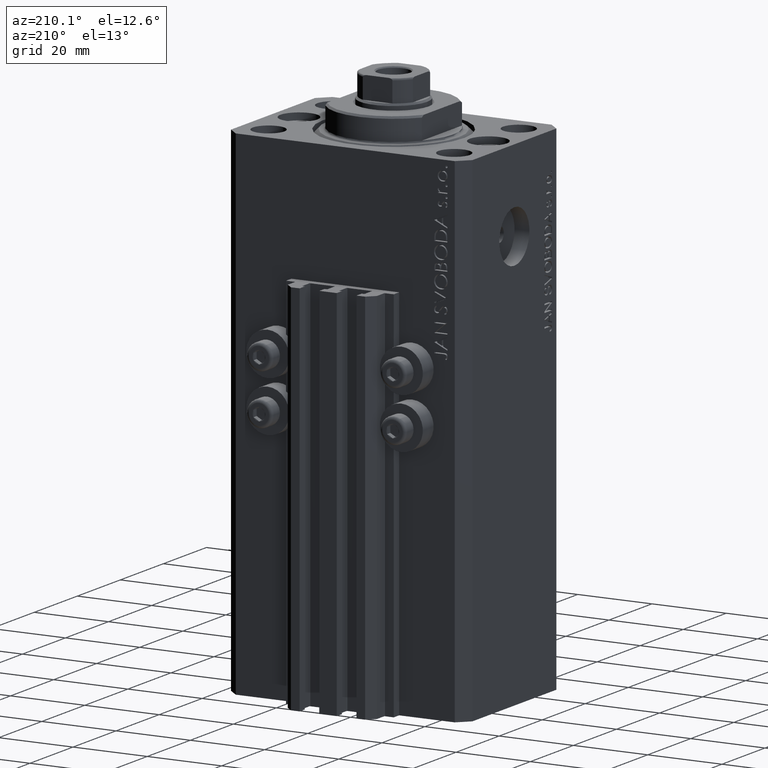
[diagram: clean part render]
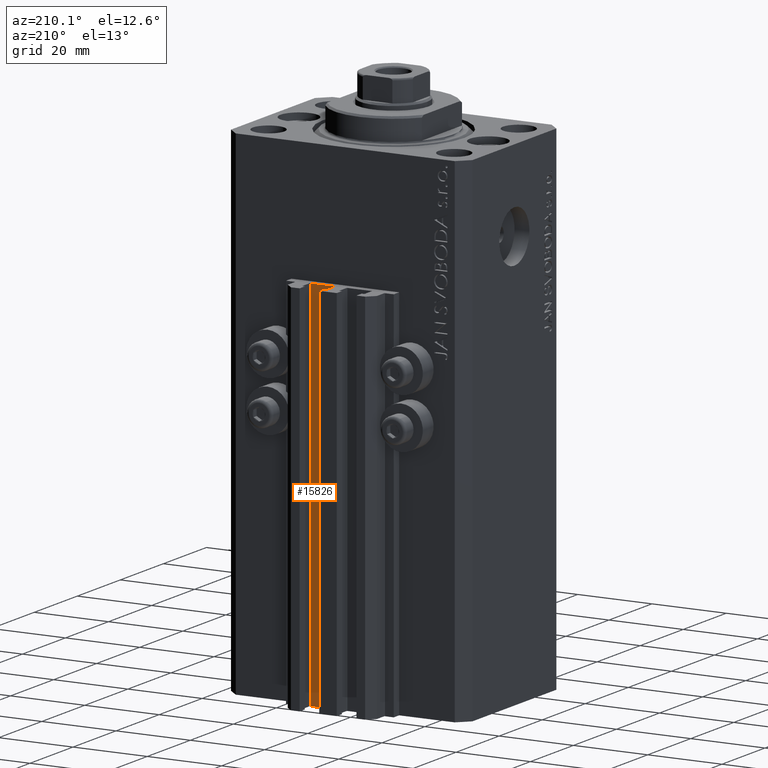
[diagram: same view with one face highlighted and labeled with its STEP entity id]
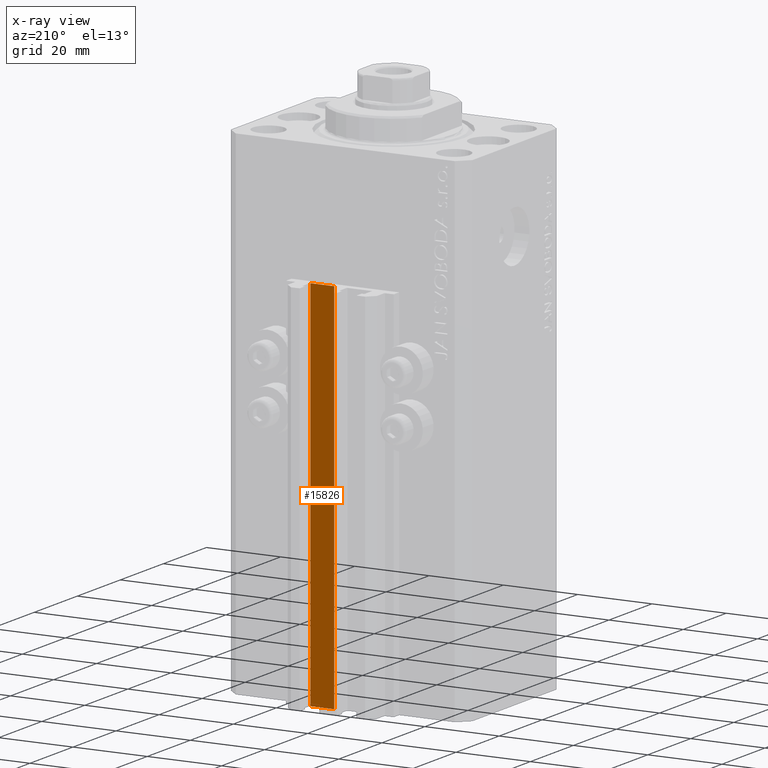
[diagram: x-ray of the same camera — body ghosted, the highlighted face saturated]
A machine part, auxiliary view. The second image highlights one B-rep face of the part: STEP entity #15826.
The next image is the same camera in x-ray: the body ghosted, the highlighted face saturated — about 0% of this face is hidden behind the body in this view.
In plain terms, the highlighted planar face has unit normal (0, 1, 0).
Its self-contained STEP definition (entity closure, byte-faithful):
#196 = DIRECTION ( 'NONE',  ( 0.000000000000000000, 0.000000000000000000, 1.000000000000000000 ) ) ;
#324 = DIRECTION ( 'NONE',  ( 0.000000000000000000, 0.000000000000000000, 1.000000000000000000 ) ) ;
#2076 = EDGE_CURVE ( 'NONE', #9453, #41131, #23277, .T. ) ;
#2442 = ORIENTED_EDGE ( 'NONE', *, *, #2076, .T. ) ;
#2815 = EDGE_CURVE ( 'NONE', #41131, #34339, #18093, .T. ) ;
#4084 = DIRECTION ( 'NONE',  ( 0.000000000000000000, 0.000000000000000000, 1.000000000000000000 ) ) ;
#6511 = VECTOR ( 'NONE', #196, 1000.000000000000000 ) ;
#7923 = CARTESIAN_POINT ( 'NONE',  ( 8.200000000000001066, 24.49999999999949196, -134.0000000000000000 ) ) ;
#8236 = CARTESIAN_POINT ( 'NONE',  ( 1.800000000000000933, 24.49999999999949196, -33.00000000000000000 ) ) ;
#8507 = VECTOR ( 'NONE', #4084, 1000.000000000000000 ) ;
#9453 = VERTEX_POINT ( 'NONE', #19838 ) ;
#9780 = ORIENTED_EDGE ( 'NONE', *, *, #2815, .T. ) ;
#11557 = FACE_OUTER_BOUND ( 'NONE', #43721, .T. ) ;
#14107 = EDGE_CURVE ( 'NONE', #9453, #37648, #32509, .T. ) ;
#14114 = LINE ( 'NONE', #28431, #16150 ) ;
#15826 = ADVANCED_FACE ( 'NONE', ( #11557 ), #37104, .T. ) ;
#15892 = DIRECTION ( 'NONE',  ( -1.000000000000000000, 0.000000000000000000, 0.000000000000000000 ) ) ;
#16150 = VECTOR ( 'NONE', #32713, 1000.000000000000000 ) ;
#18093 = LINE ( 'NONE', #28846, #6511 ) ;
#19259 = CARTESIAN_POINT ( 'NONE',  ( 8.200000000000001066, 24.49999999999949196, -33.00000000000000000 ) ) ;
#19838 = CARTESIAN_POINT ( 'NONE',  ( 8.200000000000001066, 24.49999999999949196, -134.0000000000000000 ) ) ;
#20149 = CARTESIAN_POINT ( 'NONE',  ( 8.200000000000001066, 24.49999999999949196, -134.0000000000000000 ) ) ;
#23277 = LINE ( 'NONE', #20149, #35452 ) ;
#27247 = ORIENTED_EDGE ( 'NONE', *, *, #14107, .F. ) ;
#28431 = CARTESIAN_POINT ( 'NONE',  ( 8.200000000000001066, 24.49999999999949196, -33.00000000000000000 ) ) ;
#28846 = CARTESIAN_POINT ( 'NONE',  ( 1.800000000000000933, 24.49999999999949196, -134.0000000000000000 ) ) ;
#29264 = CARTESIAN_POINT ( 'NONE',  ( 1.800000000000000933, 24.49999999999949196, -134.0000000000000000 ) ) ;
#29760 = AXIS2_PLACEMENT_3D ( 'NONE', #33042, #44477, #324 ) ;
#32509 = LINE ( 'NONE', #7923, #8507 ) ;
#32713 = DIRECTION ( 'NONE',  ( -1.000000000000000000, 0.000000000000000000, 0.000000000000000000 ) ) ;
#33042 = CARTESIAN_POINT ( 'NONE',  ( 8.200000000000001066, 24.49999999999949196, -134.0000000000000000 ) ) ;
#34339 = VERTEX_POINT ( 'NONE', #8236 ) ;
#35452 = VECTOR ( 'NONE', #15892, 1000.000000000000000 ) ;
#35520 = EDGE_CURVE ( 'NONE', #37648, #34339, #14114, .T. ) ;
#37104 = PLANE ( 'NONE',  #29760 ) ;
#37648 = VERTEX_POINT ( 'NONE', #19259 ) ;
#41131 = VERTEX_POINT ( 'NONE', #29264 ) ;
#43721 = EDGE_LOOP ( 'NONE', ( #47070, #27247, #2442, #9780 ) ) ;
#44477 = DIRECTION ( 'NONE',  ( 0.000000000000000000, 1.000000000000000000, -0.000000000000000000 ) ) ;
#47070 = ORIENTED_EDGE ( 'NONE', *, *, #35520, .F. ) ;